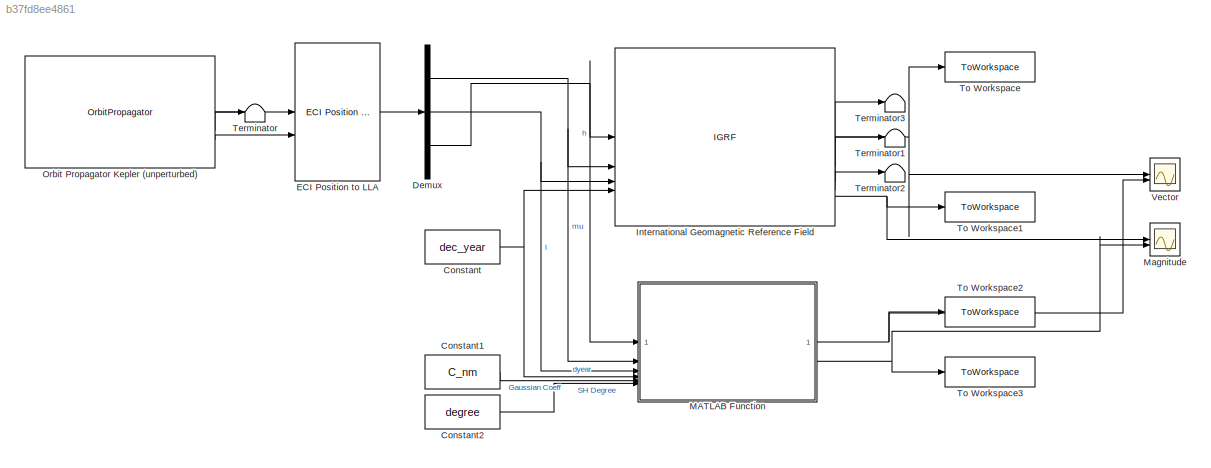
MODEL slx_b37fd8ee4861
KIND model
CONFIG AbsTol = auto
CONFIG EnableMultiTasking = off
CONFIG FixedStep = 1
CONFIG MaxStep = auto
CONFIG MinStep = auto
CONFIG RelTol = 1e-3
CONFIG SampleTimeConstraint = Unconstrained
CONFIG SolverName = ode4
CONFIG StartTime = 0.0
CONFIG StopTime = t_stop
BLOCK [Constant] Constant
  Value = dec_year
BLOCK [Constant] Constant1
  Value = C_nm
BLOCK [Constant] Constant2
  Value = degree
BLOCK [Demux] Demux
  Outputs = 3
BLOCK [Reference] ECI Position to LLA  REF=aerolibtransform2/ECI Position to LLA
  AttributesFormatString = %<red>
  SourceBlock = aerolibtransform2/ECI Position to LLA
  SourceType = ECItoLLA
BLOCK [IGRF] International Geomagnetic Reference Field
  AttributesFormatString = %<generation>
  day = 1
  month = January
  sv_out = off
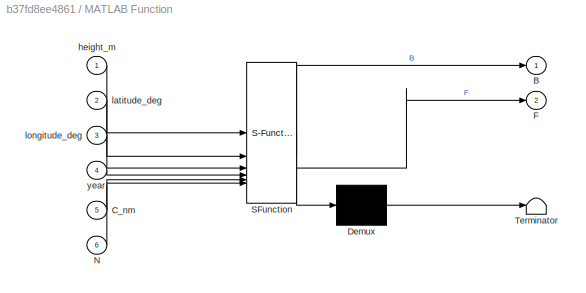
BLOCK [SubSystem] MATLAB Function
  ErrorFcn = Stateflow.Translate.translate
  PermitHierarchicalResolution = ExplicitOnly
  SFBlockType = MATLAB Function
  TreatAsAtomicUnit = on
BLOCK [Demux] MATLAB Function/ Demux 
  Outputs = 1
BLOCK [S-Function] MATLAB Function/ SFunction 
  EnableBusSupport = off
  FunctionName = sf_sfun
  PortCounts = [6 3]
  SFcnIsStateOwnerBlock = off
  SFunctionDeploymentMode = off
  Tag = Stateflow S-Function 2
BLOCK [Terminator] MATLAB Function/ Terminator 
BLOCK [Outport] MATLAB Function/B
BLOCK [Inport] MATLAB Function/C_nm
  Port = 5
BLOCK [Outport] MATLAB Function/F
  Port = 2
BLOCK [Inport] MATLAB Function/N
  Port = 6
BLOCK [Inport] MATLAB Function/height_m
BLOCK [Inport] MATLAB Function/latitude_deg
  Port = 2
BLOCK [Inport] MATLAB Function/longitude_deg
  Port = 3
BLOCK [Inport] MATLAB Function/year
  Port = 4
BLOCK [Scope] Magnitude
  ActiveDisplayYMaximum = 45556.752301250141
  ActiveDisplayYMinimum = 11577.907288855116
  DataLoggingVariableName = ScopeData1
  Floating = off
  GraphicalSettings = {"AxesScalingProperties":{"AlignXAxis":"Center","AlignYAxis":"Center","AutoScaleXAxisLimits":false,"AxesScaling":"Manual","AxesScalingNumUpdates":10,"ExpandOnly":true,"ScaleAxesLimitsAtStop":false,"XAxisDataRange":100,"YAxisDataRange":80},"DisplayProperties":{"ColorOrder":["auto","auto","auto","auto","auto","auto","auto","auto","auto","auto","auto","auto","auto","auto","auto","auto","auto","auto",...<+2121ch>
  MultipleDisplayCache = [{"MaxYLimMag":42619.4381145015,"MaxYLimReal":45556.752301250141,"MinYLimMag":17263.900806322657,"MinYLimReal":11577.907288855116,"PlotAsMagnitudePhase":false,"ShowGrid":true,"ShowLegend":false,"Title":"%<SignalLabel>","YLabel":""}]
  NumInputPorts = 2
  ScopeFrameLocation = window
  WasSavedAsWebScope = on
  WindowPosition = [488.000000,222.000000,560.000000,420.000000,]
BLOCK [OrbitPropagator] Orbit Propagator Kepler (unperturbed)
  argPeriapsis = omega
  customJ2 = 1.0826269e-03
  customMu = 4.305e13
  customOmega = 4.06125949e-3
  customR = 3396200
  eccentricity = e
  fixedPosition = [-4142689.0 -2676864.7 -4669861.6]
  fixedVelocity = [1452.7 -6720.7 2568.1]
  inclination = inc
  inertialPosition = [3649700.0 3308200.0 -4676600.0]
  inertialVelocity = [-2750.8 6666.4 2573.4]
  raan = RAAN
  semiMajorAxis = a
  startDate = juliandate(2025, 1, 1, 12, 0, 0)
  trueAnomaly = nu
BLOCK [Terminator] Terminator
BLOCK [Terminator] Terminator1
BLOCK [Terminator] Terminator2
BLOCK [Terminator] Terminator3
BLOCK [ToWorkspace] To Workspace
  FixptAsFi = on
  MaxDataPoints = inf
  SampleTime = -1
  SaveFormat = Timeseries
  VariableName = B_igrfmagm
BLOCK [ToWorkspace] To Workspace1
  FixptAsFi = on
  MaxDataPoints = inf
  SampleTime = -1
  SaveFormat = Timeseries
  VariableName = F_igrfmagm
BLOCK [ToWorkspace] To Workspace2
  FixptAsFi = on
  MaxDataPoints = inf
  SampleTime = -1
  SaveFormat = Timeseries
  VariableName = B_custom
BLOCK [ToWorkspace] To Workspace3
  FixptAsFi = on
  MaxDataPoints = inf
  SampleTime = -1
  SaveFormat = Timeseries
  VariableName = F_custom
BLOCK [Scope] Vector
  ActiveDisplayYMaximum = 40392.322261246925
  ActiveDisplayYMinimum = -29314.633715673495
  Floating = off
  GraphicalSettings = {"Style":{"BackgroundColor":[0.12941176470588237,0.12941176470588237,0.12941176470588237],"AxesColor":[0.07058823529411765,0.07058823529411765,0.07058823529411765],"LabelsColor":[0.8509803921568627,0.8509803921568627,0.8509803921568627],"PreserveColors":false,"Visible":[true,true,true,true,true,true],"LineStyle":["-","-","-","-","-","-"],"LineWidth":[1.5,1.5,1.5,1.5,1.5,1.5],"BarWidth":[0.9,0.9,0....<+2852ch>
  MultipleDisplayCache = [{"MaxYLimMag":40392.322261246925,"MaxYLimReal":40392.322261246925,"MinYLimMag":0,"MinYLimReal":-29314.633715673495,"PlotAsMagnitudePhase":false,"ShowGrid":true,"ShowLegend":false,"Title":"%<SignalLabel>","YLabel":""}]
  NumInputPorts = 2
  ScopeFrameLocation = window
  WasSavedAsWebScope = on
  WindowPosition = [488.000000,222.000000,560.000000,420.000000,]
LINE Constant1:1 -> MATLAB Function:5
LINE Constant2:1 -> MATLAB Function:6
NET Constant:1 -> International Geomagnetic Reference Field:4, MATLAB Function:4
NET Demux:1 -> International Geomagnetic Reference Field:2, MATLAB Function:2
NET Demux:2 -> International Geomagnetic Reference Field:3, MATLAB Function:3
NET Demux:3 -> International Geomagnetic Reference Field:1, MATLAB Function:1
LINE ECI Position to LLA:1 -> Demux:1
NET International Geomagnetic Reference Field:1 -> To Workspace:1, Vector:1
LINE International Geomagnetic Reference Field:2 -> Terminator3:1
LINE International Geomagnetic Reference Field:3 -> Terminator1:1
LINE International Geomagnetic Reference Field:4 -> Terminator2:1
NET International Geomagnetic Reference Field:5 -> Magnitude:1, To Workspace1:1
NET MATLAB Function:1 -> To Workspace2:1, Vector:2
NET MATLAB Function:2 -> Magnitude:2, To Workspace3:1
LINE Orbit Propagator Kepler (unperturbed):1 -> ECI Position to LLA:1
LINE Orbit Propagator Kepler (unperturbed):2 -> Terminator:1
LINE Orbit Propagator Kepler (unperturbed):3 -> ECI Position to LLA:2
note: NET lines group one-source signal fan-out (src -> all destinations, sorted); 1:1 wires keep LINE
CHART MATLAB Function states=1 transitions=1
  STATE_LABEL 'eML_blk_kernel()'
  STATE_LABEL 'SCRIPT:\nfunction [B, F] = magnetic_field_computation(height_m, latitude_deg, longitude_deg, year, C_nm, N)\n\n    [B, F] = magnetic_field(height_m, latitude_deg, longitude_deg, year, C_nm, N);\n\nend'
CHART  states=0 transitions=0
